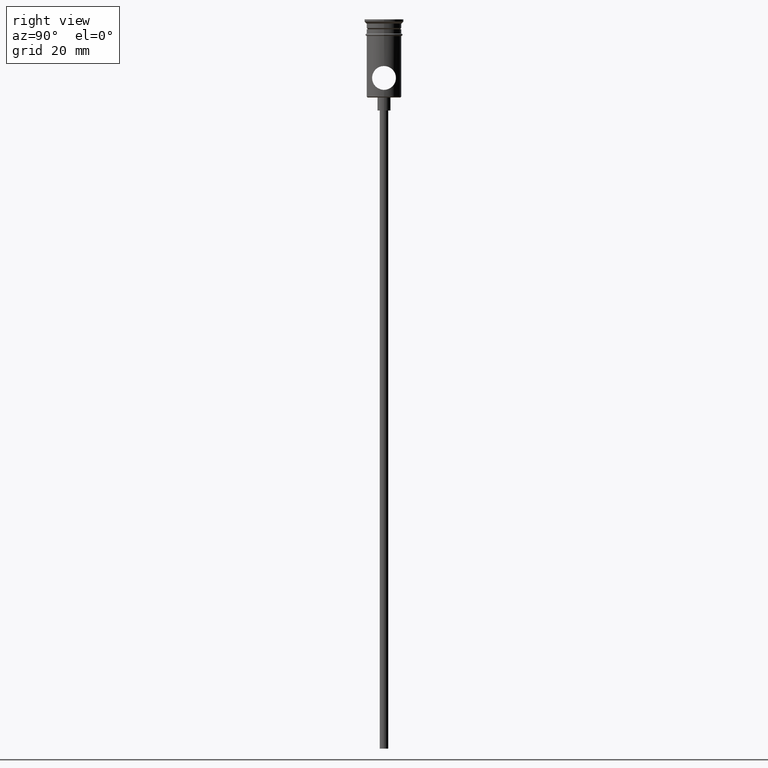
[diagram: clean part render]
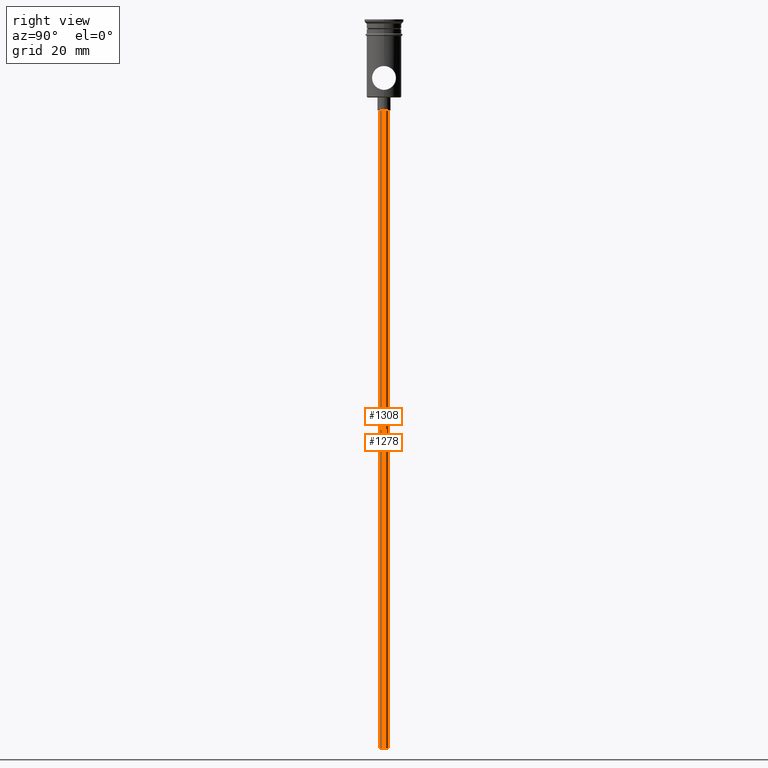
[diagram: same view with one multi-face feature highlighted, each face labeled with its STEP entity id]
A machine part, right view. The highlighted faces form ONE feature: a constant-radius fillet chain: 2 tangent blend faces with common blend radius 1 mm. The faces share edges in the B-rep.
Their STEP definitions:
[1] entity #1278 (Cylinder):
#30 = ORIENTED_EDGE ( 'NONE', *, *, #338, .F. ) ;
#39 = CARTESIAN_POINT ( 'NONE',  ( 0.9999999999999997780, 0.000000000000000000, -20.99999999999999645 ) ) ;
#54 = AXIS2_PLACEMENT_3D ( 'NONE', #709, #912, #1232 ) ;
#132 = VERTEX_POINT ( 'NONE', #364 ) ;
#164 = VECTOR ( 'NONE', #1333, 1000.000000000000000 ) ;
#194 = DIRECTION ( 'NONE',  ( -0.000000000000000000, -0.000000000000000000, 1.000000000000000000 ) ) ;
#197 = CARTESIAN_POINT ( 'NONE',  ( 0.000000000000000000, 0.000000000000000000, -167.9999999999999716 ) ) ;
#301 = AXIS2_PLACEMENT_3D ( 'NONE', #197, #417, #640 ) ;
#338 = EDGE_CURVE ( 'NONE', #132, #867, #1125, .T. ) ;
#364 = CARTESIAN_POINT ( 'NONE',  ( -0.9999999999999997780, 1.224646799147352961E-16, -167.9999999999999716 ) ) ;
#365 = CARTESIAN_POINT ( 'NONE',  ( -0.9999999999999997780, 1.224646799147352961E-16, -167.9999999999999716 ) ) ;
#397 = EDGE_CURVE ( 'NONE', #132, #804, #566, .T. ) ;
#417 = DIRECTION ( 'NONE',  ( 0.000000000000000000, 0.000000000000000000, -1.000000000000000000 ) ) ;
#444 = CARTESIAN_POINT ( 'NONE',  ( -0.9999999999999997780, 1.224646799147352961E-16, -20.99999999999999645 ) ) ;
#466 = VERTEX_POINT ( 'NONE', #39 ) ;
#469 = EDGE_CURVE ( 'NONE', #867, #466, #1325, .T. ) ;
#472 = DIRECTION ( 'NONE',  ( -0.000000000000000000, -0.000000000000000000, 1.000000000000000000 ) ) ;
#487 = AXIS2_PLACEMENT_3D ( 'NONE', #1173, #194, #639 ) ;
#550 = ORIENTED_EDGE ( 'NONE', *, *, #1315, .T. ) ;
#566 = LINE ( 'NONE', #365, #164 ) ;
#592 = EDGE_LOOP ( 'NONE', ( #30, #1226, #550, #964 ) ) ;
#639 = DIRECTION ( 'NONE',  ( 1.000000000000000000, 0.000000000000000000, 0.000000000000000000 ) ) ;
#640 = DIRECTION ( 'NONE',  ( -1.000000000000000000, 0.000000000000000000, 0.000000000000000000 ) ) ;
#678 = CIRCLE ( 'NONE', #54, 0.9999999999999997780 ) ;
#709 = CARTESIAN_POINT ( 'NONE',  ( 0.000000000000000000, 0.000000000000000000, -20.99999999999999645 ) ) ;
#804 = VERTEX_POINT ( 'NONE', #444 ) ;
#867 = VERTEX_POINT ( 'NONE', #940 ) ;
#912 = DIRECTION ( 'NONE',  ( 0.000000000000000000, 0.000000000000000000, -1.000000000000000000 ) ) ;
#940 = CARTESIAN_POINT ( 'NONE',  ( 0.9999999999999997780, 0.000000000000000000, -167.9999999999999716 ) ) ;
#949 = VECTOR ( 'NONE', #472, 1000.000000000000000 ) ;
#964 = ORIENTED_EDGE ( 'NONE', *, *, #469, .F. ) ;
#1125 = CIRCLE ( 'NONE', #301, 0.9999999999999997780 ) ;
#1173 = CARTESIAN_POINT ( 'NONE',  ( 0.000000000000000000, 0.000000000000000000, -167.9999999999999716 ) ) ;
#1185 = CYLINDRICAL_SURFACE ( 'NONE', #487, 0.9999999999999997780 ) ;
#1226 = ORIENTED_EDGE ( 'NONE', *, *, #397, .T. ) ;
#1232 = DIRECTION ( 'NONE',  ( -1.000000000000000000, 0.000000000000000000, 0.000000000000000000 ) ) ;
#1278 = ADVANCED_FACE ( 'NONE', ( #1380 ), #1185, .T. ) ;
#1315 = EDGE_CURVE ( 'NONE', #804, #466, #678, .T. ) ;
#1325 = LINE ( 'NONE', #1348, #949 ) ;
#1333 = DIRECTION ( 'NONE',  ( -0.000000000000000000, -0.000000000000000000, 1.000000000000000000 ) ) ;
#1348 = CARTESIAN_POINT ( 'NONE',  ( 0.9999999999999997780, 0.000000000000000000, -167.9999999999999716 ) ) ;
#1380 = FACE_OUTER_BOUND ( 'NONE', #592, .T. ) ;
[2] entity #1308 (Cylinder):
#39 = CARTESIAN_POINT ( 'NONE',  ( 0.9999999999999997780, 0.000000000000000000, -20.99999999999999645 ) ) ;
#52 = DIRECTION ( 'NONE',  ( -0.000000000000000000, -0.000000000000000000, 1.000000000000000000 ) ) ;
#132 = VERTEX_POINT ( 'NONE', #364 ) ;
#164 = VECTOR ( 'NONE', #1333, 1000.000000000000000 ) ;
#224 = DIRECTION ( 'NONE',  ( -1.000000000000000000, 0.000000000000000000, 0.000000000000000000 ) ) ;
#247 = CARTESIAN_POINT ( 'NONE',  ( 0.000000000000000000, 0.000000000000000000, -167.9999999999999716 ) ) ;
#275 = DIRECTION ( 'NONE',  ( 1.000000000000000000, 0.000000000000000000, 0.000000000000000000 ) ) ;
#348 = AXIS2_PLACEMENT_3D ( 'NONE', #247, #1127, #1358 ) ;
#364 = CARTESIAN_POINT ( 'NONE',  ( -0.9999999999999997780, 1.224646799147352961E-16, -167.9999999999999716 ) ) ;
#365 = CARTESIAN_POINT ( 'NONE',  ( -0.9999999999999997780, 1.224646799147352961E-16, -167.9999999999999716 ) ) ;
#397 = EDGE_CURVE ( 'NONE', #132, #804, #566, .T. ) ;
#418 = FACE_OUTER_BOUND ( 'NONE', #852, .T. ) ;
#440 = EDGE_CURVE ( 'NONE', #466, #804, #971, .T. ) ;
#444 = CARTESIAN_POINT ( 'NONE',  ( -0.9999999999999997780, 1.224646799147352961E-16, -20.99999999999999645 ) ) ;
#466 = VERTEX_POINT ( 'NONE', #39 ) ;
#469 = EDGE_CURVE ( 'NONE', #867, #466, #1325, .T. ) ;
#472 = DIRECTION ( 'NONE',  ( -0.000000000000000000, -0.000000000000000000, 1.000000000000000000 ) ) ;
#540 = ORIENTED_EDGE ( 'NONE', *, *, #469, .T. ) ;
#557 = DIRECTION ( 'NONE',  ( 0.000000000000000000, 0.000000000000000000, -1.000000000000000000 ) ) ;
#566 = LINE ( 'NONE', #365, #164 ) ;
#567 = ORIENTED_EDGE ( 'NONE', *, *, #440, .T. ) ;
#575 = CARTESIAN_POINT ( 'NONE',  ( 0.000000000000000000, 0.000000000000000000, -167.9999999999999716 ) ) ;
#728 = ORIENTED_EDGE ( 'NONE', *, *, #1322, .F. ) ;
#766 = CIRCLE ( 'NONE', #348, 0.9999999999999997780 ) ;
#804 = VERTEX_POINT ( 'NONE', #444 ) ;
#852 = EDGE_LOOP ( 'NONE', ( #1411, #728, #540, #567 ) ) ;
#867 = VERTEX_POINT ( 'NONE', #940 ) ;
#878 = AXIS2_PLACEMENT_3D ( 'NONE', #894, #557, #224 ) ;
#894 = CARTESIAN_POINT ( 'NONE',  ( 0.000000000000000000, 0.000000000000000000, -20.99999999999999645 ) ) ;
#905 = AXIS2_PLACEMENT_3D ( 'NONE', #575, #52, #275 ) ;
#940 = CARTESIAN_POINT ( 'NONE',  ( 0.9999999999999997780, 0.000000000000000000, -167.9999999999999716 ) ) ;
#949 = VECTOR ( 'NONE', #472, 1000.000000000000000 ) ;
#971 = CIRCLE ( 'NONE', #878, 0.9999999999999997780 ) ;
#992 = CYLINDRICAL_SURFACE ( 'NONE', #905, 0.9999999999999997780 ) ;
#1127 = DIRECTION ( 'NONE',  ( 0.000000000000000000, 0.000000000000000000, -1.000000000000000000 ) ) ;
#1308 = ADVANCED_FACE ( 'NONE', ( #418 ), #992, .T. ) ;
#1322 = EDGE_CURVE ( 'NONE', #867, #132, #766, .T. ) ;
#1325 = LINE ( 'NONE', #1348, #949 ) ;
#1333 = DIRECTION ( 'NONE',  ( -0.000000000000000000, -0.000000000000000000, 1.000000000000000000 ) ) ;
#1348 = CARTESIAN_POINT ( 'NONE',  ( 0.9999999999999997780, 0.000000000000000000, -167.9999999999999716 ) ) ;
#1358 = DIRECTION ( 'NONE',  ( -1.000000000000000000, 0.000000000000000000, 0.000000000000000000 ) ) ;
#1411 = ORIENTED_EDGE ( 'NONE', *, *, #397, .F. ) ;